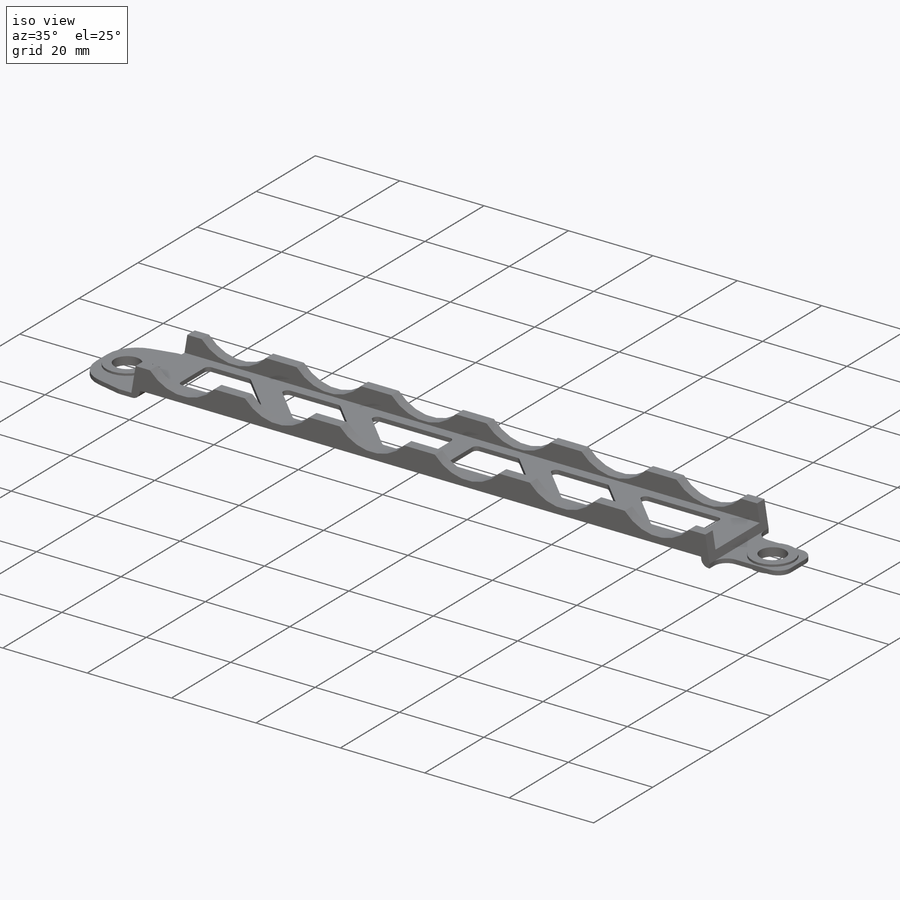
[diagram: iso view]
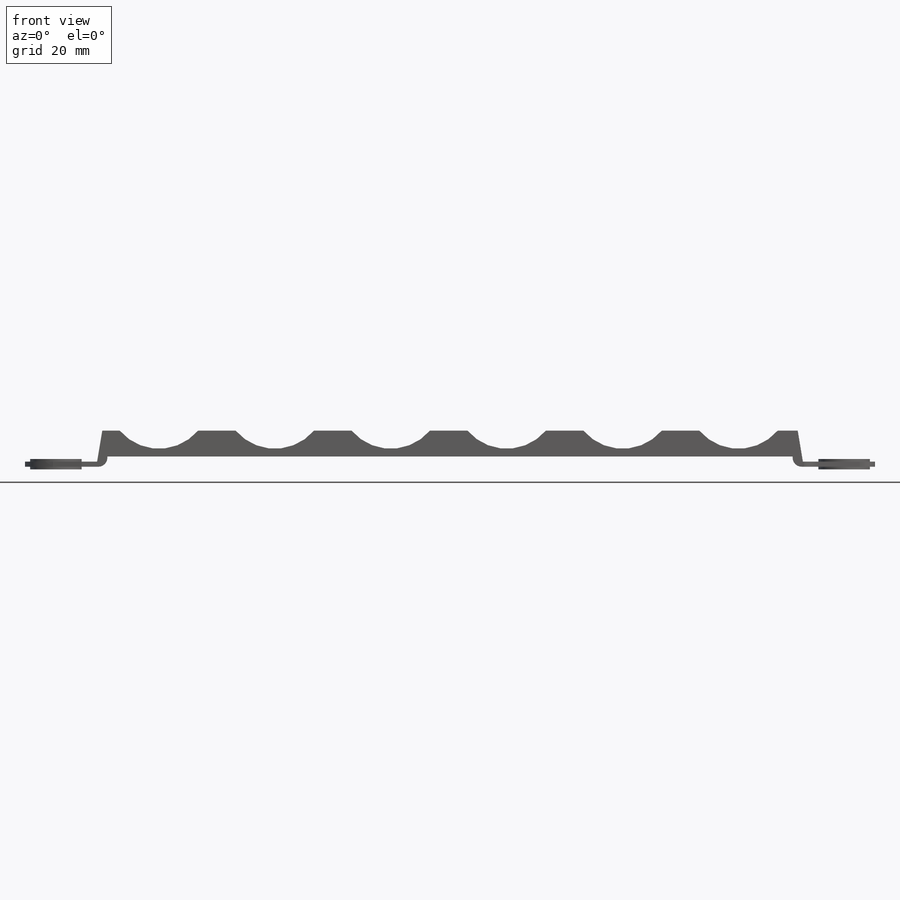
[diagram: front view]
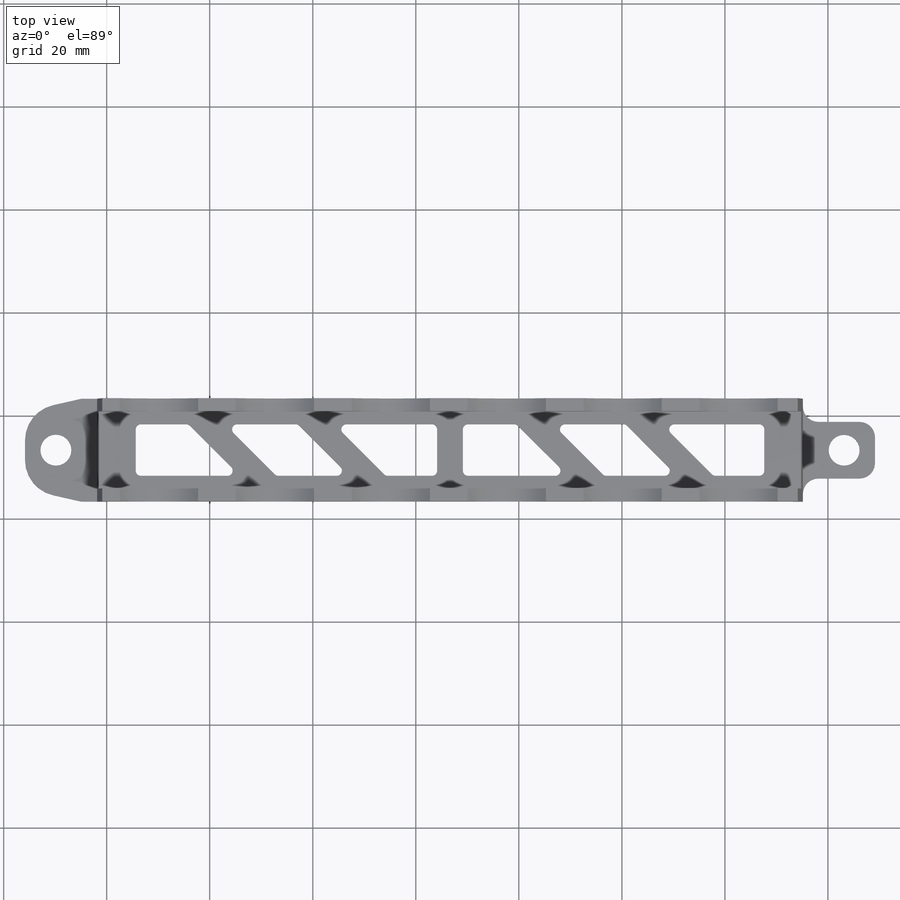
[diagram: top view]
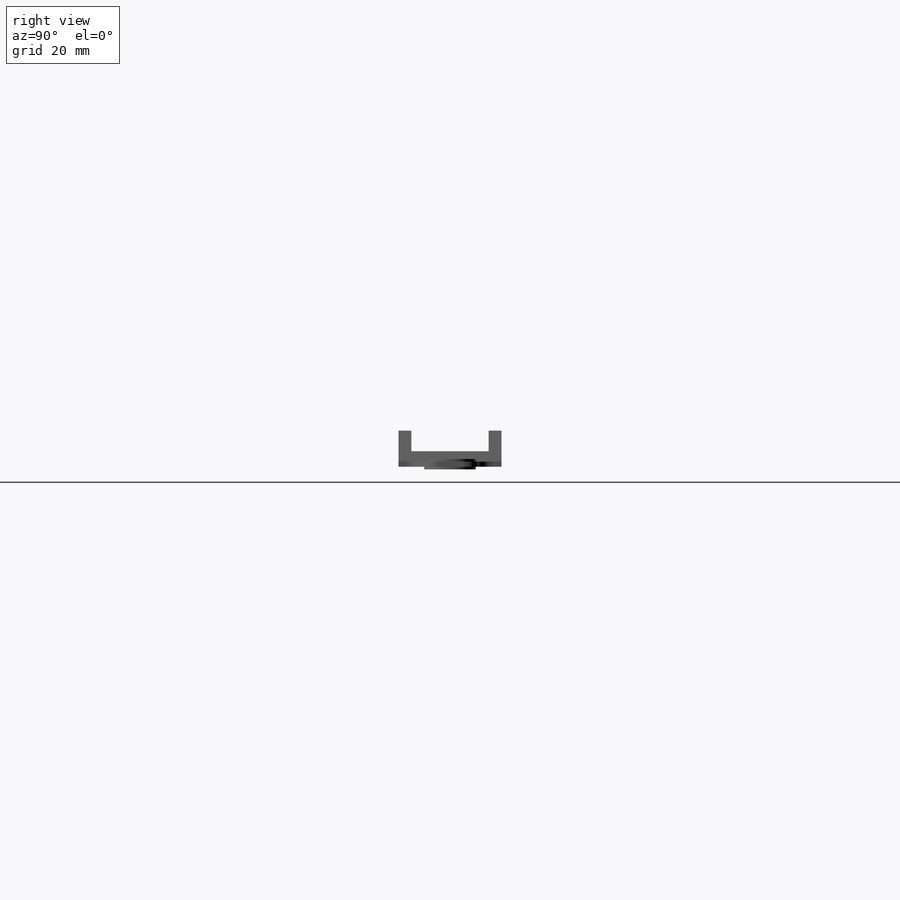
[diagram: right view]
SOLIDWORKS PART (.sldprt)
format: sldprt  version: not decoded by parser v0  size: 704,000 bytes
history: native  units: mm
features: sketch x14, cut_extrude x9, extrude x5, material x1, pattern_linear x1, fillet x1 (+12 scaffold rows collapsed)
feature tree (43):
  scaffold x12  (default folders/planes/origin — collapsed)
  material  "Material <not specified>"
  sketch  "Sketch1"  dims[D1=165.0mm D2=20.0mm]
  extrude  "Extrude1"  Depth=7mm
  sketch  "Sketch2"  dims[D1=2.5mm D2=2.5mm]
  cut_extrude  "Cut-Extrude2"  Depth=4mm
  sketch  "Sketch3"  dims[D1=1.0mm D2=14.0mm D3=2.0mm D4=2.0mm D5=2.0mm]
  cut_extrude  "Cut-Extrude3"  [1 undecoded]
  sketch  "Sketch4"  dims[D1=20.0mm D2=11.5mm D3=12.0mm]
  cut_extrude  "Cut-Extrude4"  [1 undecoded]
  pattern_linear  "LPattern1"  Count1=6 Count2=1 Spacing1=22.5mm Spacing2=50mm
  sketch  "Sketch5"  dims[D1=1.0mm D2=~1.000046mm]
  cut_extrude  "Cut-Extrude5"  [1 undecoded]
  sketch  "Sketch6"  dims[D3=10.0mm D4=6.0mm D1=10.0mm D2=6.0mm D5=6.0mm]
  extrude  "Extrude2"  Depth=0.5mm
  sketch  "Sketch7"
  cut_extrude  "Cut-Extrude6"  [1 undecoded]
  sketch  "Sketch8"  dims[D5=7.0mm D6=7.0mm D1=3.0mm D2=3.0mm D3=2.5mm D4=2.5mm]
  cut_extrude  "Cut-Extrude7"  [1 undecoded]
  sketch  "Sketch9"  dims[D1=10.0mm]
  extrude  "Extrude3"  Depth=0.5mm
  sketch  "Sketch10"  dims[c1.D2=6.0mm c1.D1=6.0mm c2.D2=~9.110015mm c3.D2=~2.02414deg c4.D2=14.0mm c4.D3=10.0mm]
  cut_extrude  "Cut-Extrude8"  [1 undecoded]
  sketch  "Sketch11"  dims[c1.D2=3.0mm c1.D3=3.0mm c1.D4=3.0mm c1.D1=4.5mm c2.D2=16.0mm c2.D3=16.0mm c2.D4=5.5mm]
  cut_extrude  "Cut-Extrude9"  [1 undecoded]
  sketch  "Sketch12"  dims[D1=10.0mm]
  extrude  "Extrude4"  Depth=0.5mm
  sketch  "Sketch13"  dims[D1=10.0mm]
  extrude  "Extrude5"  Depth=0.5mm
  sketch  "Sketch14"  dims[D16=1.0mm D1=7.5mm D2=7.5mm D3=5.0mm D4=10.0mm D5=58.5mm D6=5.0mm D7=20.0mm D8=10.0mm D9=5.0mm D10=10.0mm D11=5.0mm D12=25.0mm D13=5.0mm D14=10.0mm D15=5.0mm]
  cut_extrude  "Cut-Extrude10"  [1 undecoded]
  fillet  "Fillet1"  Radius=1.75mm
decode coverage: 21 of 30 modeling features carry decoded parameters
note: ~ marks probable driven/reference dimensions
note: 8 parameter values undecoded
summary: no parameter record found for 8 features
note: suppression state not decoded; provenance and decode notes live in map.json
